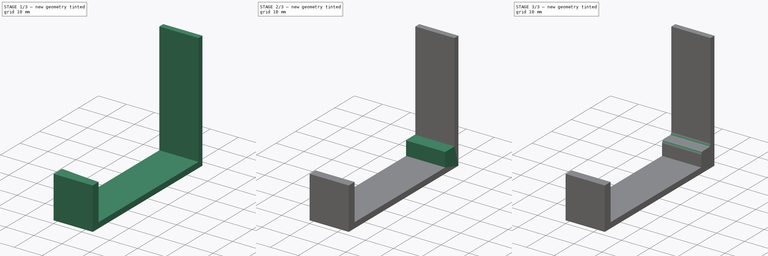
[diagram: build sequence overview — one tinted view per stage of 3, left to right]
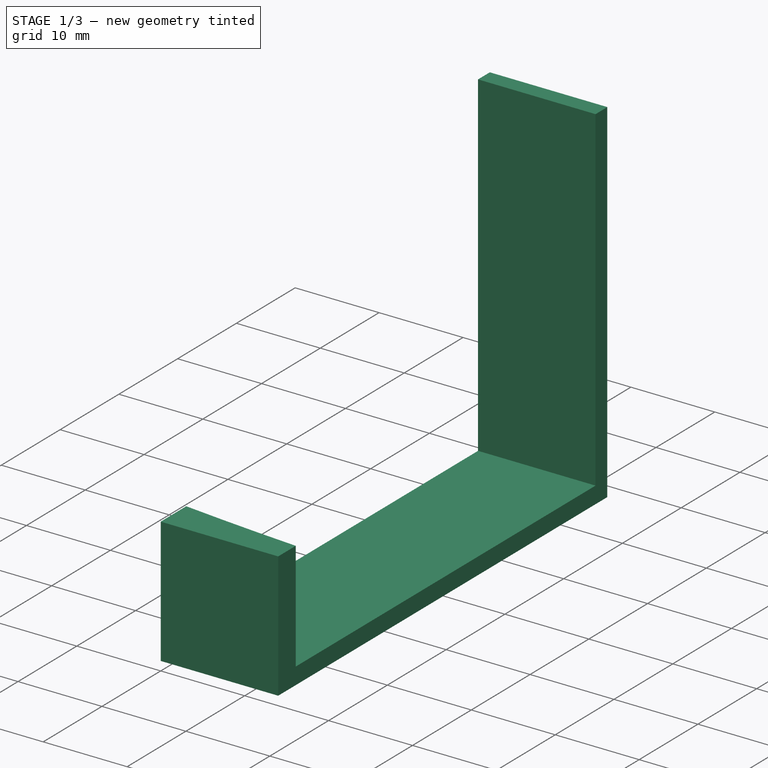
[diagram: stage 1 of 3 — iso view after this stage's code; geometry added in this stage tinted green]
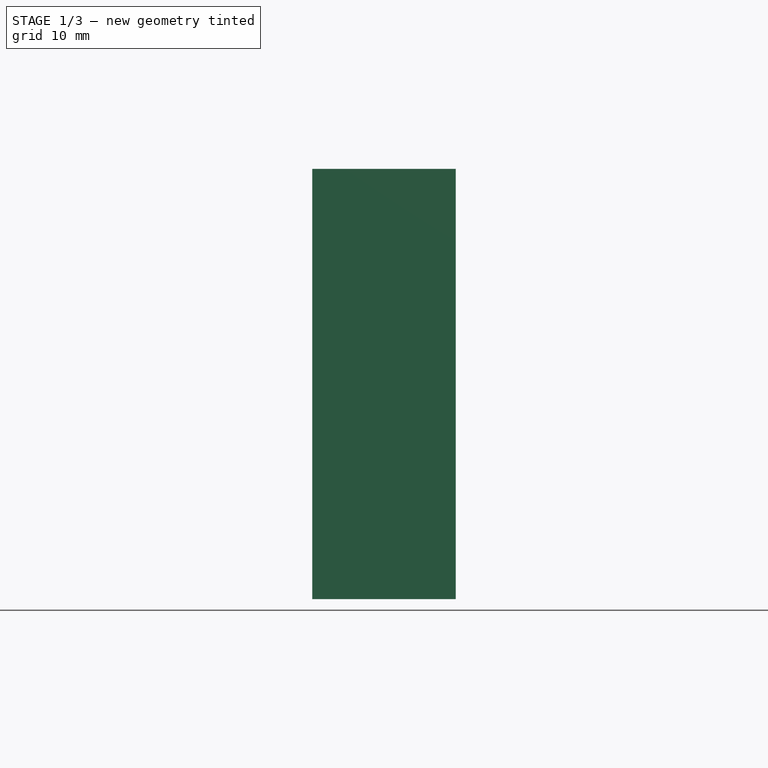
[diagram: stage 1 of 3 — front view after this stage's code; geometry added in this stage tinted green]
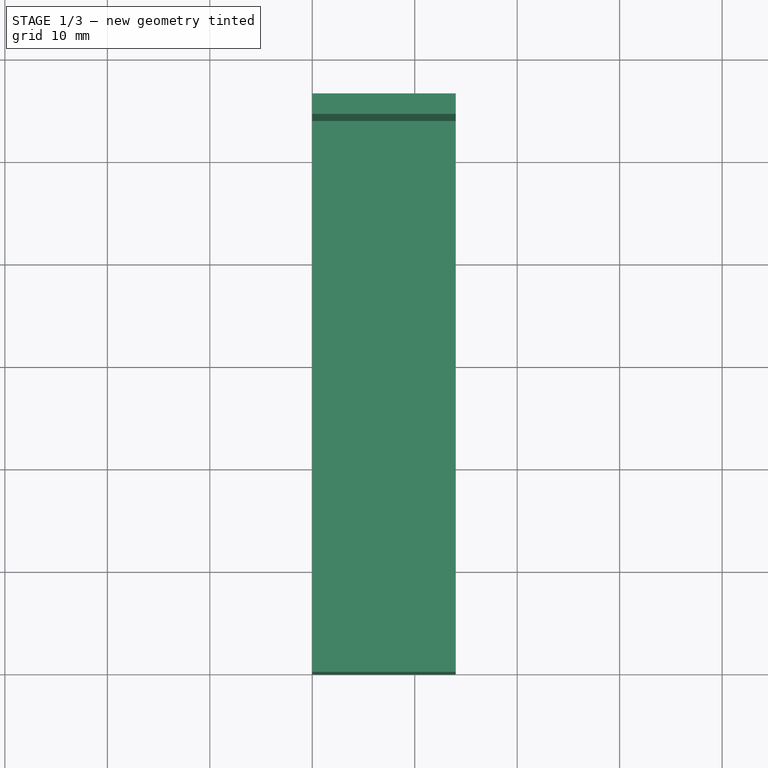
[diagram: stage 1 of 3 — top view after this stage's code; geometry added in this stage tinted green]
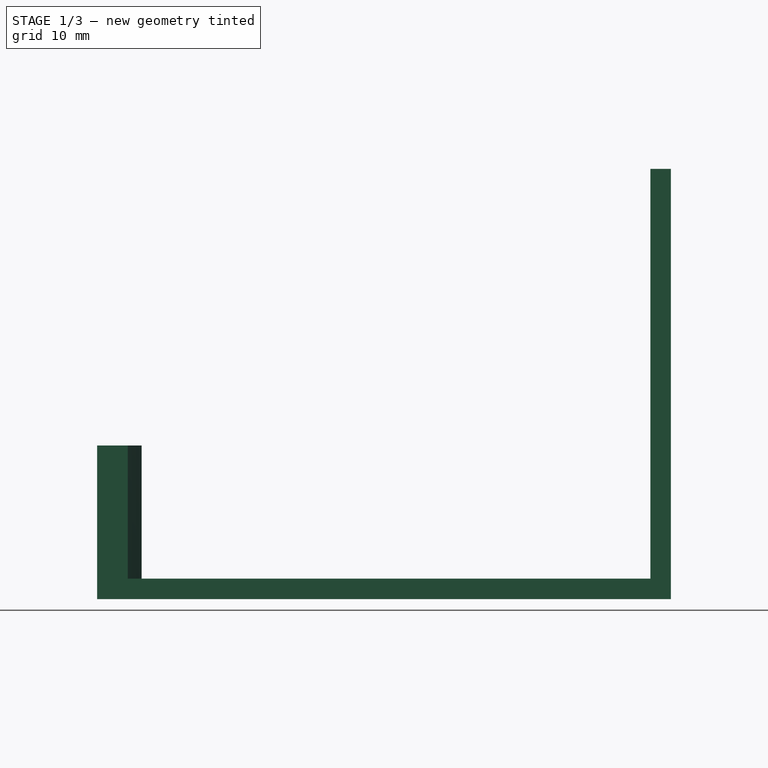
[diagram: stage 1 of 3 — right view after this stage's code; geometry added in this stage tinted green]
FCSTD DOCUMENT  (FreeCAD 0.20R29177 +426 (Git))
Label: Atari Lynx Model 2 Kit
License: All rights reserved
LicenseURL: http://en.wikipedia.org/wiki/All_rights_reserved
objects: Sketcher::SketchObject×4, PartDesign::Pad×3, PartDesign::Fillet×2, PartDesign::Pocket×1, PartDesign::Body×1
note: 17 computed .brp shape members not serialized (recipe doc carries the construction recipe); baked Part::Feature solids carry a one-line shape summary decoded from their .brp

FEATURE [Sketcher::SketchObject] Sketch
  FullyConstrained = true
  MapMode = 5
  Placement = pos=(0,0,0) rot=(0.57735,0.57735,0.57735;2.0944rad)
  Support = -> [YZ_Plane]
  sketch-geometry (9):
    g0: LineSegment StartX=0 StartY=0 StartZ=0 EndX=0 EndY=15 EndZ=0
    g1: LineSegment StartX=0 StartY=15 StartZ=0 EndX=2 EndY=15 EndZ=0
    g2: LineSegment StartX=2 StartY=15 StartZ=0 EndX=2 EndY=2 EndZ=0
    g3: LineSegment StartX=2 StartY=2 StartZ=0 EndX=54 EndY=2 EndZ=0
    g4: LineSegment StartX=54 StartY=2 StartZ=0 EndX=54 EndY=42 EndZ=0
    g5: LineSegment StartX=54 StartY=42 StartZ=0 EndX=56 EndY=42 EndZ=0
    g6: LineSegment StartX=56 StartY=42 StartZ=0 EndX=56 EndY=0 EndZ=0
    g7: LineSegment StartX=56 StartY=0 StartZ=0 EndX=0 EndY=0 EndZ=0
    g8: LineSegment StartX=2 StartY=2 StartZ=0 EndX=2 EndY=0 EndZ=0
  constraints (26):
    c: Coincident(g0,g-1)
    c: PointOnObject(g0,g-2)
    c: Coincident(g1,g0)
    c: Horizontal(g1)
    c: Coincident(g2,g1)
    c: Vertical(g2)
    c: Coincident(g3,g2)
    c: Horizontal(g3)
    c: Coincident(g4,g3)
    c: Vertical(g4)
    c: Coincident(g5,g4)
    c: Horizontal(g5)
    c: Coincident(g6,g5)
    c: PointOnObject(g6,g-1)
    c: Vertical(g6)
    c: Coincident(g7,g6)
    c: Coincident(g7,g0)
    c: Coincident(g8,g2)
    c: PointOnObject(g8,g7)
    c: Vertical(g8)
    c: Distance(g3) = 52
    c: Equal(g1,g5)
    c: Distance(g2) = 13
    c: Distance(g4) = 40
    c: Distance(g1) = 2
    c: Distance(g8) = 2
FEATURE [PartDesign::Pad] Pad
  Direction = (1,-2e-16,3e-16)
  Length = 14
  Length2 = 10
  Placement = pos=(0,0,0) rot=(0.57735,0.57735,0.57735;2.0944rad)
  Profile = -> Sketch
  ReferenceAxis = -> Sketch [N_Axis]
  Type = 0
FEATURE [Sketcher::SketchObject] Sketch001
  ExternalGeometry = -> [Pad]
  FullyConstrained = true
  MapMode = 5
  Placement = pos=(-8e-16,1.1e-15,2) rot=(0,0,-1;1.5708rad)
  Support = -> [Pad]
  sketch-geometry (12):
    g0: LineSegment StartX=-2 StartY=-13.8 StartZ=0 EndX=-2 EndY=93.8 EndZ=0
    g1: LineSegment StartX=-54 StartY=-3e-16 StartZ=0 EndX=-54 EndY=-13.8 EndZ=0
    g2: LineSegment StartX=-54 StartY=-13.8 StartZ=0 EndX=-2 EndY=-13.8 EndZ=0
    g3: LineSegment StartX=-2 StartY=93.8 StartZ=0 EndX=-6.25 EndY=93.8 EndZ=0
    g4: LineSegment StartX=-6.25 StartY=93.8 StartZ=0 EndX=-6.25 EndY=-13.8 EndZ=0
    g5: ArcOfCircle CenterX=-344.647 CenterY=40 CenterZ=0 NormalX=0 NormalY=0 NormalZ=1 AngleXU=0 Radius=342.647 StartAngle=6.12552 EndAngle=6.44085
    g6: LineSegment StartX=-6.25 StartY=40 StartZ=0 EndX=-54 EndY=40 EndZ=0
    g7: LineSegment StartX=-54 StartY=80 StartZ=0 EndX=-54 EndY=0 EndZ=0
    g8: LineSegment StartX=-2 StartY=14 StartZ=0 EndX=-2.98786 EndY=14 EndZ=0
    g9: LineSegment StartX=-2 StartY=-3e-16 StartZ=0 EndX=-4.34277 EndY=-3e-16 EndZ=0
    g10: LineSegment StartX=-2 StartY=-3e-16 StartZ=0 EndX=-2 EndY=14 EndZ=0
    g11: ArcOfCircle CenterX=-344.647 CenterY=40 CenterZ=0 NormalX=0 NormalY=0 NormalZ=1 AngleXU=0 Radius=342.647 StartAngle=6.16618 EndAngle=6.20723
  constraints (34):
    c: Vertical(g0)
    c: Coincident(g1,g-4)
    c: Vertical(g1)
    c: Coincident(g2,g1)
    c: Coincident(g2,g0)
    c: Horizontal(g2)
    c: Distance(g0) = 107.6
    c: PointOnObject(g-3,g0)
    c: Coincident(g3,g0)
    c: Horizontal(g3)
    c: Distance(g3) = 4.25
    c: Coincident(g4,g3)
    c: PointOnObject(g4,g2)
    c: Vertical(g4)
    c: Coincident(g5,g3)
    c: Coincident(g5,g4)
    c: Tangent(g5,g0)
    c: Horizontal(g6)
    c: Vertical(g7)
    c: Symmetric(g3,g4,g6)
    c: Symmetric(g7,g7,g6)
    c: Distance(g7) = 80
    c: Coincident(g7,g1)
    c: Coincident(g8,g-3)
    c: PointOnObject(g8,g5)
    c: Horizontal(g8)
    c: Coincident(g9,g-4)
    c: PointOnObject(g9,g5)
    c: Horizontal(g9)
    c: Coincident(g10,g9)
    c: Coincident(g10,g8)
    c: Coincident(g11,g9)
    c: Coincident(g11,g8)
    c: Equal(g5,g11)
FEATURE [PartDesign::Pad] Pad001
  BaseFeature = -> Pad
  Direction = (-4e-16,6e-16,1)
  Length = 10
  Length2 = 10
  Placement = pos=(0,0,0) rot=(0.57735,0.57735,0.57735;2.0944rad)
  Profile = -> Sketch001
  ReferenceAxis = -> Sketch001 [N_Axis]
  Refine = true
  Type = 3
  UpToFace = -> Pad [Face2]
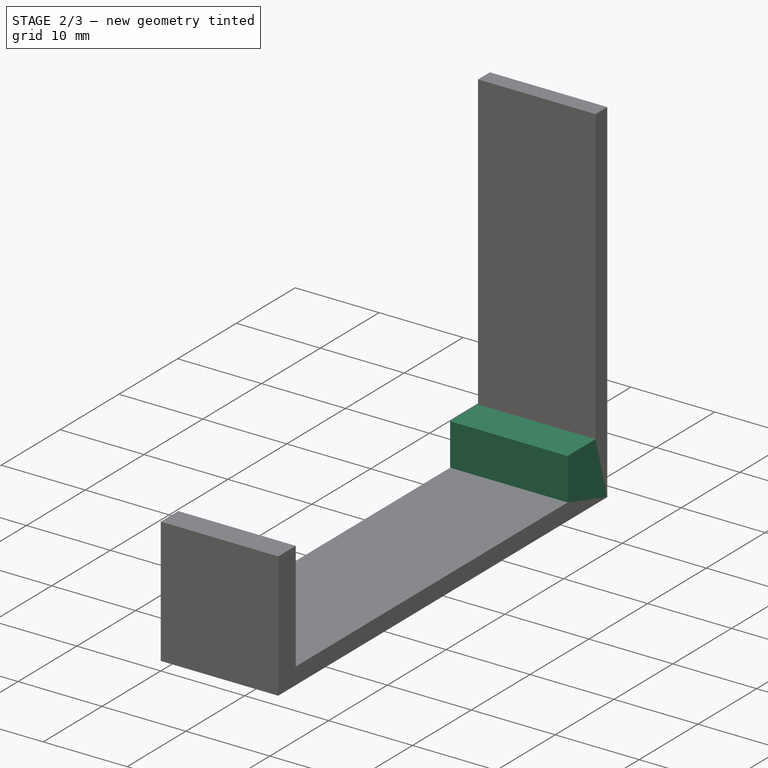
[diagram: stage 2 of 3 — iso view after this stage's code; geometry added in this stage tinted green]
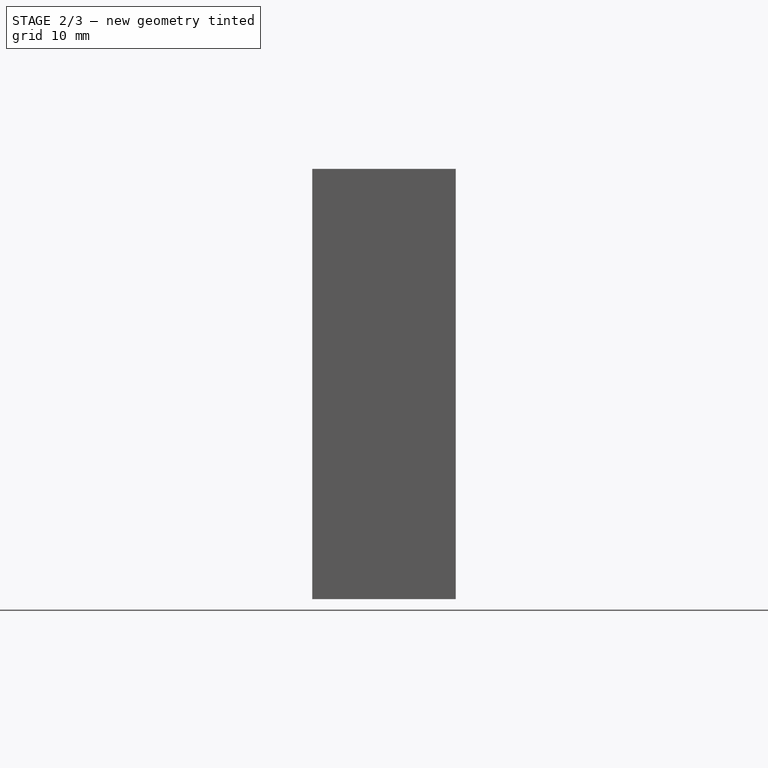
[diagram: stage 2 of 3 — front view after this stage's code; geometry added in this stage tinted green]
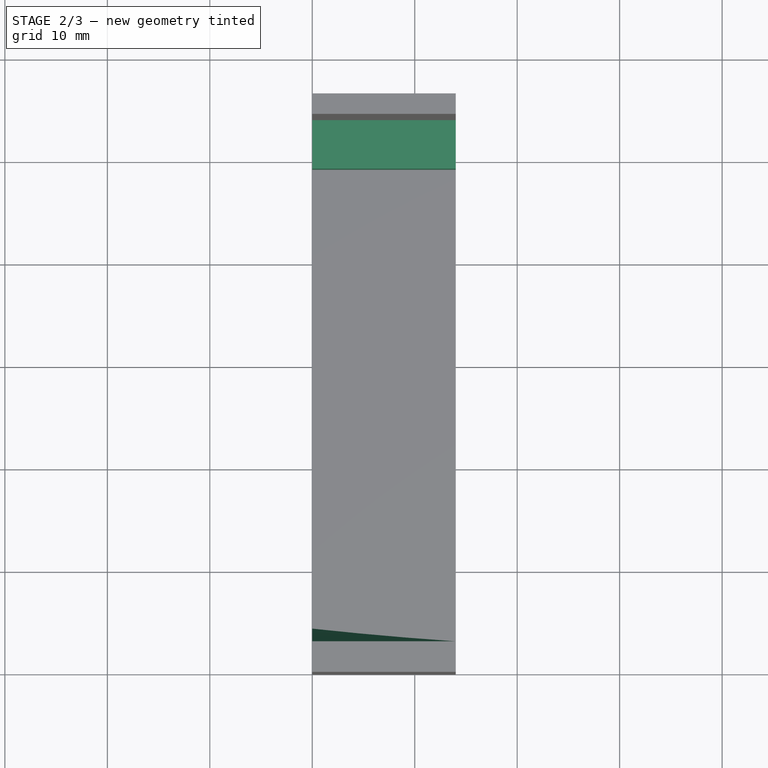
[diagram: stage 2 of 3 — top view after this stage's code; geometry added in this stage tinted green]
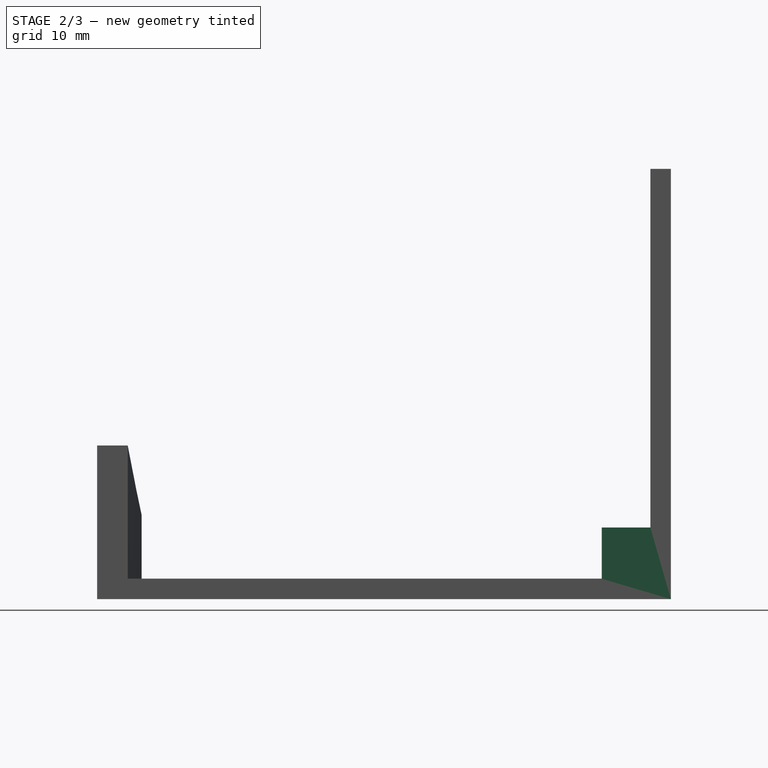
[diagram: stage 2 of 3 — right view after this stage's code; geometry added in this stage tinted green]
FEATURE [Sketcher::SketchObject] Sketch002
  ExternalGeometry = -> [Pad001]
  FullyConstrained = true
  MapMode = 5
  Placement = pos=(14,-3.8e-15,1.27e-14) rot=(0.57735,0.57735,0.57735;2.0944rad)
  Support = -> [Pad001]
  sketch-geometry (7):
    g0: LineSegment StartX=2.98786 StartY=3.25 StartZ=0 EndX=5.48786 EndY=3.25 EndZ=0
    g1: LineSegment StartX=5.48786 StartY=3.25 StartZ=0 EndX=5.48786 EndY=101.65 EndZ=0
    g2: ArcOfCircle CenterX=207.865 CenterY=52.45 CenterZ=0 NormalX=0 NormalY=0 NormalZ=1 AngleXU=0 Radius=208.272 StartAngle=2.90311 EndAngle=3.38008
    g3: ArcOfCircle CenterX=207.865 CenterY=52.45 CenterZ=0 NormalX=0 NormalY=0 NormalZ=1 AngleXU=0 Radius=208.272 StartAngle=3.32239 EndAngle=3.38008
    g4: LineSegment StartX=2.98786 StartY=15 StartZ=0 EndX=5.48786 EndY=15 EndZ=0
    g5: LineSegment StartX=5.48786 StartY=15 StartZ=0 EndX=5.48786 EndY=3.25 EndZ=0
    g6: LineSegment StartX=2.98786 StartY=2 StartZ=0 EndX=2.98786 EndY=3.25 EndZ=0
  constraints (20):
    c: Horizontal(g0)
    c: Distance(g0) = 2.5
    c: Coincident(g1,g0)
    c: Vertical(g1)
    c: Distance(g1) = 98.4
    c: Coincident(g2,g1)
    c: Coincident(g2,g0)
    c: PointOnObject(g-3,g2)
    c: Coincident(g3,g0)
    c: Coincident(g3,g-3)
    c: Equal(g3,g2)
    c: Coincident(g4,g3)
    c: PointOnObject(g4,g1)
    c: Horizontal(g4)
    c: Coincident(g5,g4)
    c: Coincident(g5,g3)
    c: PointOnObject(g0,g-3)
    c: Coincident(g6,g0)
    c: Distance(g6) = 1.25
    c: Coincident(g6,g-3)
FEATURE [PartDesign::Pocket] Pocket
  BaseFeature = -> Pad001
  Direction = (-1,3e-16,-1.1e-15)
  Length = 100
  Length2 = 5
  Placement = pos=(0,0,0) rot=(0.57735,0.57735,0.57735;2.0944rad)
  Profile = -> Sketch002
  ReferenceAxis = -> Sketch002 [N_Axis]
  Refine = true
  Type = 0
FEATURE [Sketcher::SketchObject] Sketch003
  ExternalGeometry = -> [Pocket]
  FullyConstrained = true
  MapMode = 5
  Placement = pos=(-5.5e-15,0,0) rot=(0.57735,0.57735,-0.57735;4.18879rad)
  Support = -> [Pocket]
  sketch-geometry (4):
    g0: LineSegment StartX=54 StartY=-2 StartZ=0 EndX=49.25 EndY=-2 EndZ=0
    g1: LineSegment StartX=49.25 StartY=-2 StartZ=0 EndX=49.25 EndY=-7 EndZ=0
    g2: LineSegment StartX=49.25 StartY=-7 StartZ=0 EndX=54 EndY=-7 EndZ=0
    g3: LineSegment StartX=54 StartY=-7 StartZ=0 EndX=54 EndY=-2 EndZ=0
  constraints (11):
    c: Coincident(g0,g1)
    c: Coincident(g1,g2)
    c: Coincident(g2,g3)
    c: Coincident(g3,g0)
    c: Horizontal(g0)
    c: Horizontal(g2)
    c: Vertical(g1)
    c: Vertical(g3)
    c: Coincident(g0,g-3)
    c: Distance(g2) = 4.75
    c: Distance(g1) = 5
FEATURE [PartDesign::Pad] Pad002
  BaseFeature = -> Pocket
  Direction = (-1,4e-16,-9e-16)
  Length = 14
  Length2 = 10
  Placement = pos=(0,0,0) rot=(0.57735,0.57735,0.57735;2.0944rad)
  Profile = -> Sketch003
  ReferenceAxis = -> Sketch003 [N_Axis]
  Refine = true
  Reversed = true
  Type = 0
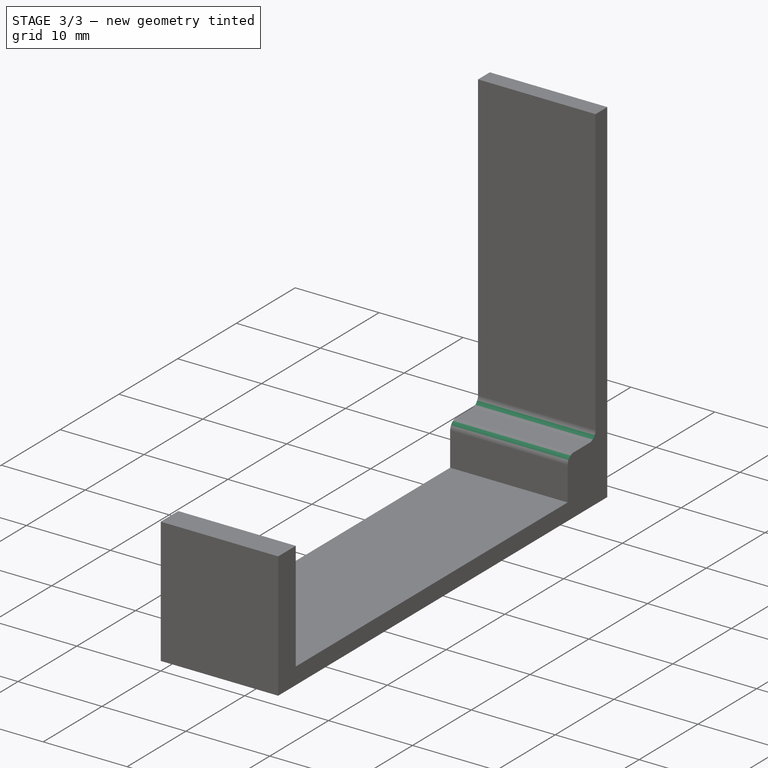
[diagram: stage 3 of 3 — iso view after this stage's code; geometry added in this stage tinted green]
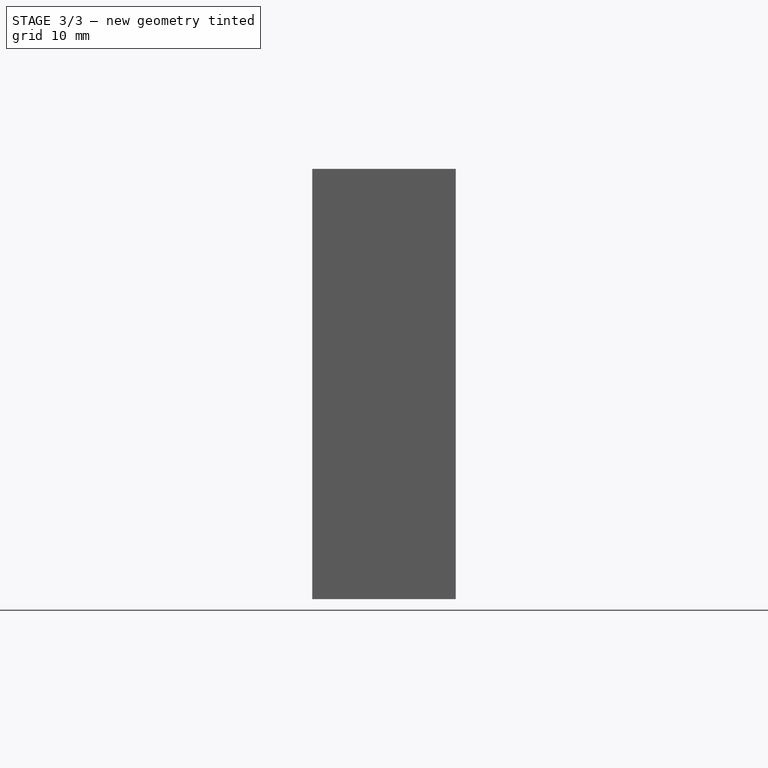
[diagram: stage 3 of 3 — front view after this stage's code; geometry added in this stage tinted green]
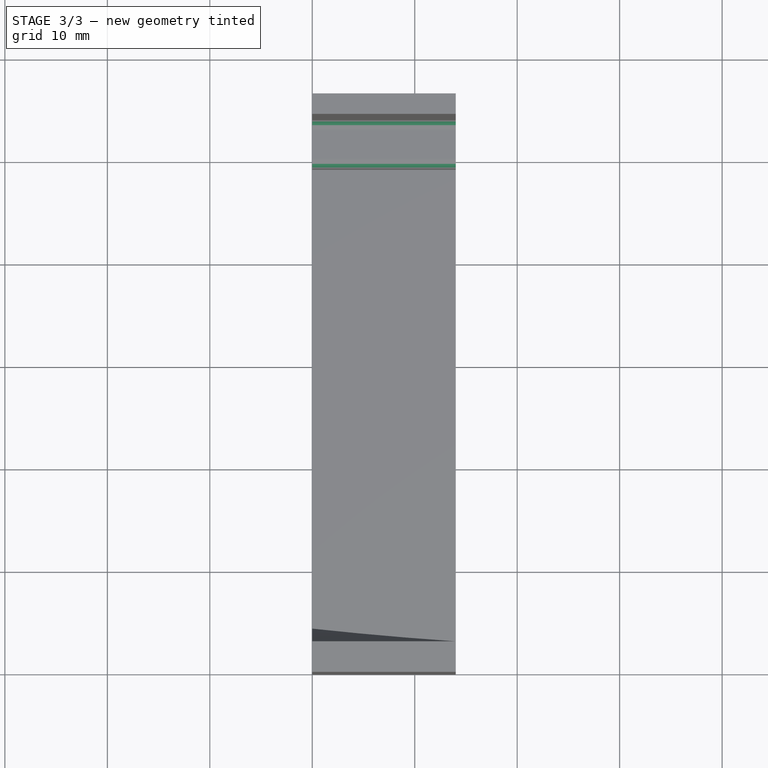
[diagram: stage 3 of 3 — top view after this stage's code; geometry added in this stage tinted green]
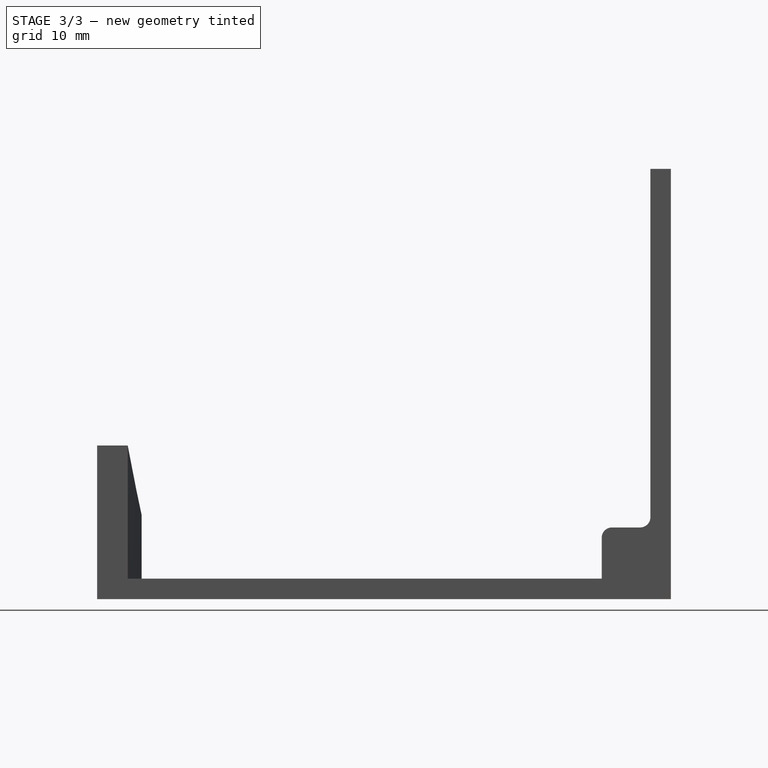
[diagram: stage 3 of 3 — right view after this stage's code; geometry added in this stage tinted green]
FEATURE [PartDesign::Fillet] Fillet
  Base = -> Pad002 [Edge21]
  BaseFeature = -> Pad002
  Placement = pos=(0,0,0) rot=(0.57735,0.57735,0.57735;2.0944rad)
  Radius = 1
  SupportTransform = false
  UseAllEdges = false
FEATURE [PartDesign::Fillet] Fillet001
  Base = -> Fillet [Edge28]
  BaseFeature = -> Fillet
  Placement = pos=(0,0,0) rot=(0.57735,0.57735,0.57735;2.0944rad)
  Radius = 1
  SupportTransform = false
  UseAllEdges = false
FEATURE [PartDesign::Body] Body
  Group = -> [Sketch,Pad,Sketch001,Pad001,Sketch002,Pocket,Sketch003,Pad002,Fillet,Fillet001]
  Origin = -> Origin
  Tip = -> Fillet001
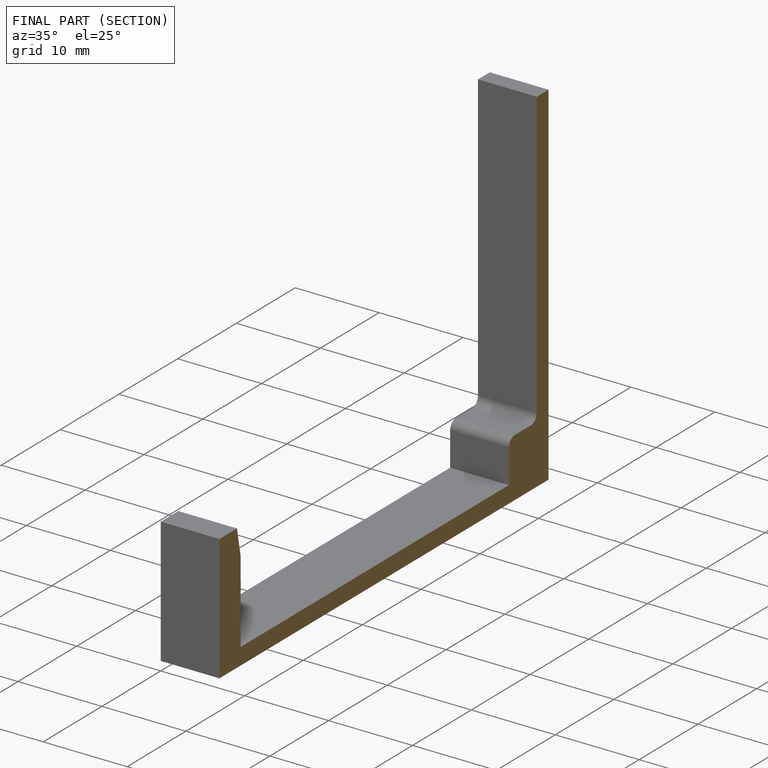
[diagram: finished part — half-section view (interior)]
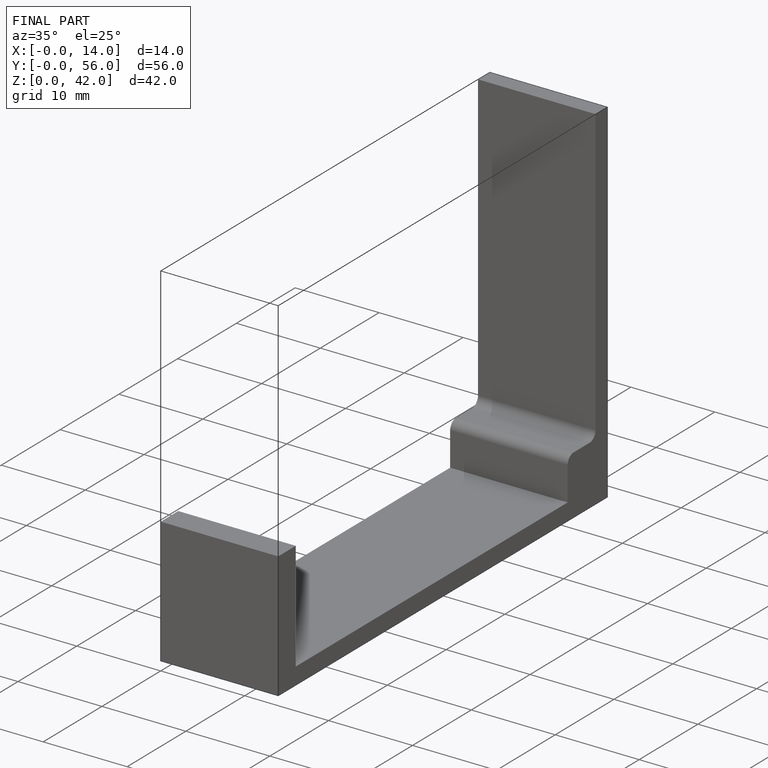
[diagram: finished part — iso view with bounding-box wireframe]
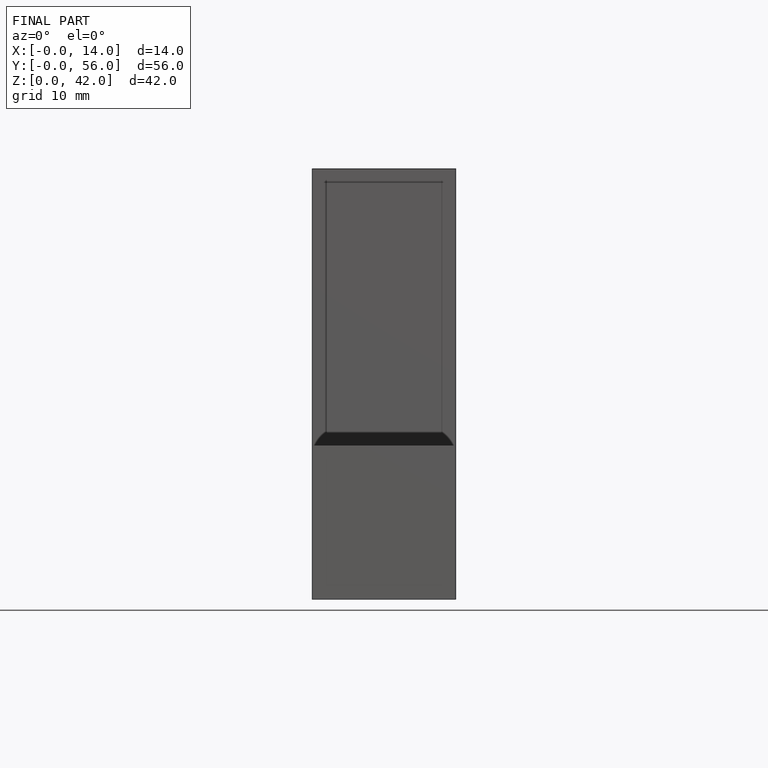
[diagram: finished part — front view with bounding-box wireframe]
